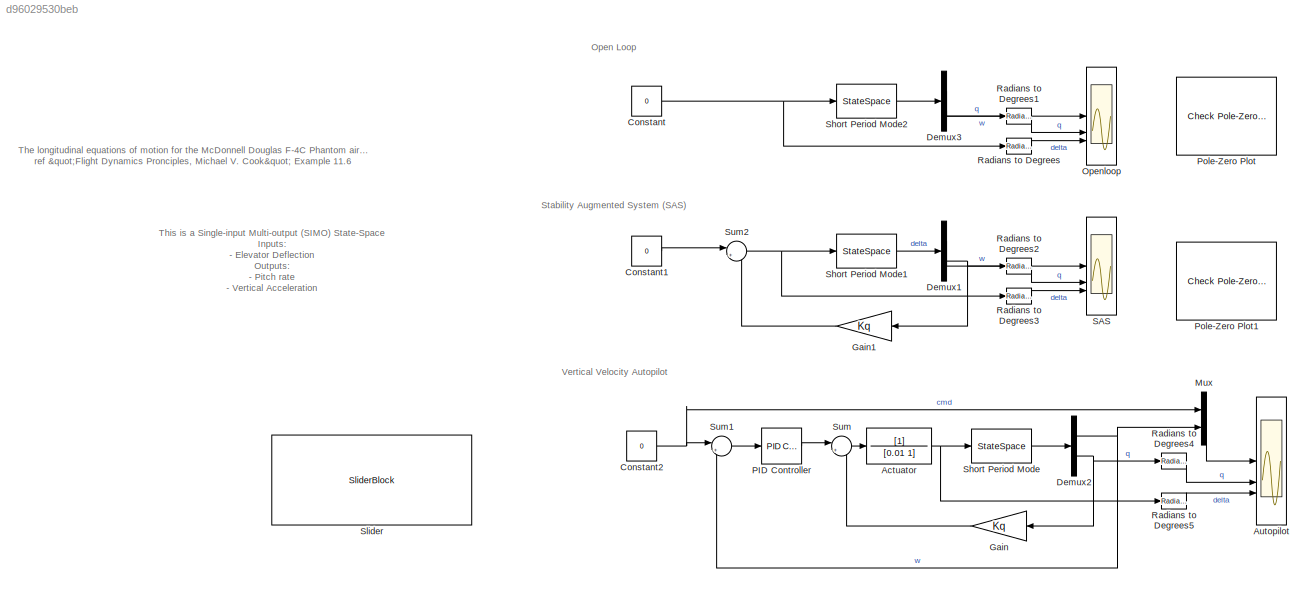
MODEL slx_d96029530beb
KIND model
CONFIG AbsTol = auto
CONFIG EnableMultiTasking = off
CONFIG FixedStep = 1/1000
CONFIG MaxStep = auto
CONFIG MinStep = auto
CONFIG RelTol = 1e-3
CONFIG SampleTimeConstraint = Unconstrained
CONFIG SolverName = FixedStepAuto
CONFIG StartTime = 0.0
CONFIG StopTime = 10
BLOCK [TransferFcn] Actuator
  Denominator = [0.01 1]
BLOCK [Scope] Autopilot
  Floating = off
  NumInputPorts = 3
  ScopeSpecificationString = Simulink.scopes.TimeScopeBlockCfg('CurrentConfiguration', extmgr.ConfigurationSet(extmgr.Configuration('Core','General UI',true),extmgr.Configuration('Core','Source UI',true),extmgr.Configuration('Sources','WiredSimulink',true,'DataLoggingVariableName','ScopeData2'),extmgr.Configuration('Visuals','Time Domain',true,'SerializedDisplays',{struct('MinYLimReal','-13.38342','MaxYLimReal','14.02573','YL...<+2859ch>
BLOCK [Constant] Constant
  Value = 0
BLOCK [Constant] Constant1
  Value = 0
BLOCK [Constant] Constant2
  Value = 0
BLOCK [Demux] Demux1
  Outputs = 2
BLOCK [Demux] Demux2
  Outputs = 2
BLOCK [Demux] Demux3
  Outputs = 2
BLOCK [Gain] Gain
  Gain = Kq
BLOCK [Gain] Gain1
  Gain = Kq
BLOCK [Mux] Mux
  DisplayOption = bar
  Inputs = 2
BLOCK [Scope] Openloop
  Floating = off
  NumInputPorts = 3
  ScopeSpecificationString = Simulink.scopes.TimeScopeBlockCfg('CurrentConfiguration', extmgr.ConfigurationSet(extmgr.Configuration('Core','General UI',true),extmgr.Configuration('Core','Source UI',true),extmgr.Configuration('Sources','WiredSimulink',true,'DataLoggingVariableName','ScopeData1'),extmgr.Configuration('Visuals','Time Domain',true,'SerializedDisplays',{struct('MinYLimReal','-16.91008','MaxYLimReal','24.56674','YL...<+2785ch>
BLOCK [Reference] PID Controller  REF=slpidlib/PID Controller
  LibrarySourceBlock = simulink/Continuous/PID Controller
  SourceBlock = slpidlib/PID Controller
  SourceType = PID 1dof
BLOCK [Reference] Pole-Zero Plot  REF=slctrlblks/Model Verification/Check Pole-Zero
Characteristics
  InstantiateOnLoad = on
  LibrarySourceBlock = slctrlblks/Linear Analysis Plots/Pole-Zero Plot
  SourceBlock = slctrlblks/Model Verification/Check Pole-Zero\nCharacteristics
  SourceType = Checks_PZMap
BLOCK [Reference] Pole-Zero Plot1  REF=slctrlblks/Model Verification/Check Pole-Zero
Characteristics
  InstantiateOnLoad = on
  LibrarySourceBlock = slctrlblks/Linear Analysis Plots/Pole-Zero Plot
  SourceBlock = slctrlblks/Model Verification/Check Pole-Zero\nCharacteristics
  SourceType = Checks_PZMap
BLOCK [Reference] Radians to Degrees  REF=simulink_extras/Transformations/Radians
to Degrees
  SourceBlock = simulink_extras/Transformations/Radians\nto Degrees
  SourceType = RadiansToDegrees
BLOCK [Reference] Radians to Degrees1  REF=simulink_extras/Transformations/Radians
to Degrees
  SourceBlock = simulink_extras/Transformations/Radians\nto Degrees
  SourceType = RadiansToDegrees
BLOCK [Reference] Radians to Degrees2  REF=simulink_extras/Transformations/Radians
to Degrees
  SourceBlock = simulink_extras/Transformations/Radians\nto Degrees
  SourceType = RadiansToDegrees
BLOCK [Reference] Radians to Degrees3  REF=simulink_extras/Transformations/Radians
to Degrees
  SourceBlock = simulink_extras/Transformations/Radians\nto Degrees
  SourceType = RadiansToDegrees
BLOCK [Reference] Radians to Degrees4  REF=simulink_extras/Transformations/Radians
to Degrees
  SourceBlock = simulink_extras/Transformations/Radians\nto Degrees
  SourceType = RadiansToDegrees
BLOCK [Reference] Radians to Degrees5  REF=simulink_extras/Transformations/Radians
to Degrees
  SourceBlock = simulink_extras/Transformations/Radians\nto Degrees
  SourceType = RadiansToDegrees
BLOCK [Scope] SAS
  Floating = off
  NumInputPorts = 3
  ScopeSpecificationString = Simulink.scopes.TimeScopeBlockCfg('CurrentConfiguration', extmgr.ConfigurationSet(extmgr.Configuration('Core','General UI',true),extmgr.Configuration('Core','Source UI',true),extmgr.Configuration('Sources','WiredSimulink',true,'DataLoggingVariableName','ScopeData3'),extmgr.Configuration('Visuals','Time Domain',true,'SerializedDisplays',{struct('MinYLimReal','-10.1372','MaxYLimReal','20.04488','YLa...<+2797ch>
BLOCK [StateSpace] Short Period Mode
  A = A
  B = B
  C = C
  D = D
  InitialCondition = 0
BLOCK [StateSpace] Short Period Mode1
  A = A
  B = B
  C = C
  D = D
  InitialCondition = IC
BLOCK [StateSpace] Short Period Mode2
  A = A
  B = B
  C = C
  D = D
  InitialCondition = IC
BLOCK [SliderBlock] Slider
  LabelPosition = Hide
  ScaleMax = 10
  ScaleMin = -10
BLOCK [Sum] Sum
  Inputs = |+-
BLOCK [Sum] Sum1
  Inputs = |+-
BLOCK [Sum] Sum2
  Inputs = |+-
ANNOTATION (root): The longitudinal equations of motion for the McDonnell Douglas F-4C Phantom aircraft were obtained from Heffley and Jewell (1972). At the chosen flight condition the weight is 38,925 lb and the aircraft is flying at Mach 1.1 at sea level. ref "Flight Dynamics Pronciples, Michael V. Cook" Example 11.6
ANNOTATION (root): This is a Single-input Multi-output (SIMO) State-Space Inputs: - Elevator Deflection Outputs: - Pitch rate - Vertical Acceleration Note: this is only the short period mode!
ANNOTATION (root): Open Loop
ANNOTATION (root): Stability Augmented System (SAS)
ANNOTATION (root): Vertical Velocity Autopilot
NET Actuator:1 -> Radians to Degrees5:1, Short Period Mode:1
LINE Constant1:1 -> Sum2:1
NET Constant2:1 -> Mux:1, Sum1:1
NET Constant:1 -> Radians to Degrees:1, Short Period Mode2:1
LINE Demux1:1 -> SAS:1
NET Demux1:2 -> Gain1:1, Radians to Degrees2:1
NET Demux2:1 -> Mux:2, Sum1:2
NET Demux2:2 -> Gain:1, Radians to Degrees4:1
LINE Demux3:1 -> Openloop:1
LINE Demux3:2 -> Radians to Degrees1:1
LINE Gain1:1 -> Sum2:2
LINE Gain:1 -> Sum:2
LINE Mux:1 -> Autopilot:1
LINE PID Controller:1 -> Sum:1
LINE Radians to Degrees1:1 -> Openloop:2
LINE Radians to Degrees2:1 -> SAS:2
LINE Radians to Degrees3:1 -> SAS:3
LINE Radians to Degrees4:1 -> Autopilot:2
LINE Radians to Degrees5:1 -> Autopilot:3
LINE Radians to Degrees:1 -> Openloop:3
LINE Short Period Mode1:1 -> Demux1:1
LINE Short Period Mode2:1 -> Demux3:1
LINE Short Period Mode:1 -> Demux2:1
LINE Sum1:1 -> PID Controller:1
NET Sum2:1 -> Radians to Degrees3:1, Short Period Mode1:1
LINE Sum:1 -> Actuator:1
note: NET lines group one-source signal fan-out (src -> all destinations, sorted); 1:1 wires keep LINE
